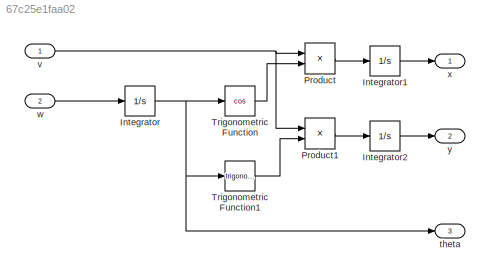
MODEL slx_67c25e1faa02
KIND model
BLOCK [Integrator] Integrator
  Ports = [1, 1]
BLOCK [Integrator] Integrator1
  Ports = [1, 1]
BLOCK [Integrator] Integrator2
  Ports = [1, 1]
BLOCK [Product] Product
  InputSameDT = off
  OutDataTypeStr = Inherit: Inherit via internal rule
  Ports = [2, 1]
  RndMeth = Floor
  SaturateOnIntegerOverflow = off
BLOCK [Product] Product1
  InputSameDT = off
  OutDataTypeStr = Inherit: Inherit via internal rule
  Ports = [2, 1]
  RndMeth = Floor
  SaturateOnIntegerOverflow = off
BLOCK [Trigonometry] Trigonometric Function
  Operator = cos
  Ports = [1, 1]
BLOCK [Trigonometry] Trigonometric Function1
  Ports = [1, 1]
BLOCK [Outport] theta
  IconDisplay = Port number
  Port = 3
BLOCK [Inport] v
  IconDisplay = Port number
BLOCK [Inport] w
  IconDisplay = Port number
  Port = 2
BLOCK [Outport] x
  IconDisplay = Port number
BLOCK [Outport] y
  IconDisplay = Port number
  Port = 2
LINE Integrator1:1 -> x:1
LINE Integrator2:1 -> y:1
NET Integrator:1 -> Trigonometric Function1:1, Trigonometric Function:1, theta:1
LINE Product1:1 -> Integrator2:1
LINE Product:1 -> Integrator1:1
LINE Trigonometric Function1:1 -> Product1:2
LINE Trigonometric Function:1 -> Product:2
NET v:1 -> Product1:1, Product:1
LINE w:1 -> Integrator:1
note: NET lines group one-source signal fan-out (src -> all destinations, sorted); 1:1 wires keep LINE
